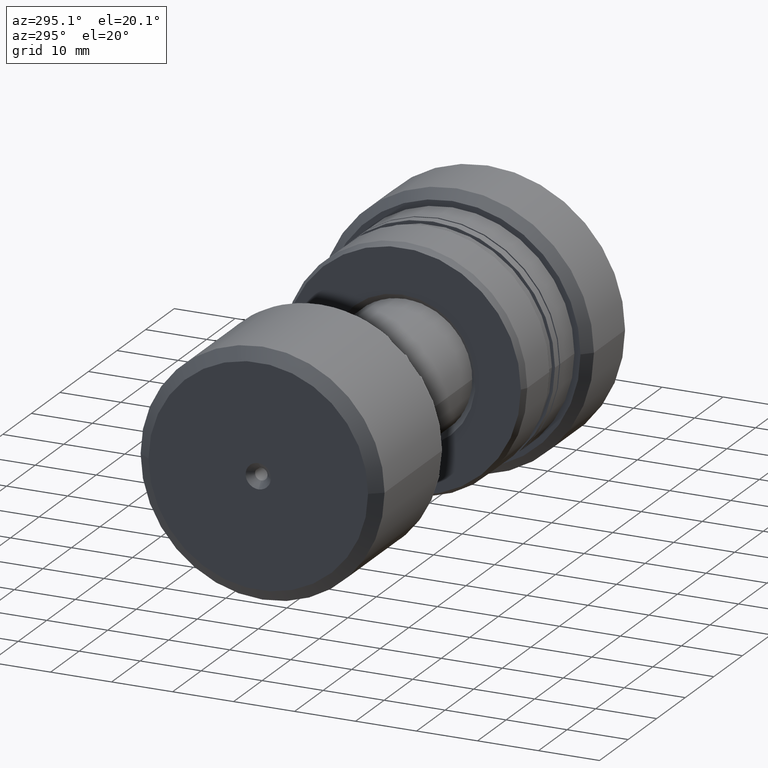
[diagram: clean part render]
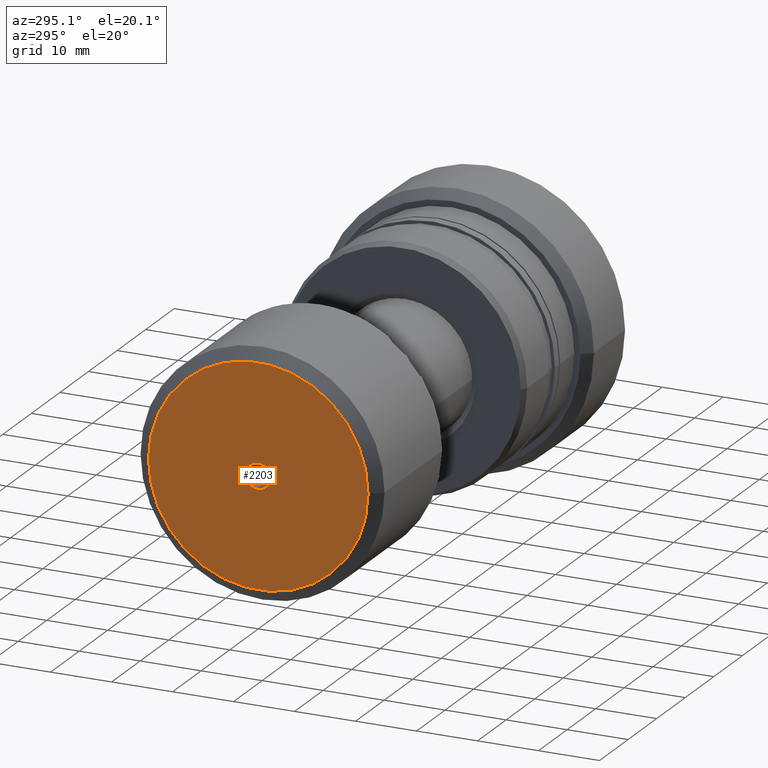
[diagram: same view with one face highlighted and labeled with its STEP entity id]
A machine part, auxiliary view. The second image highlights one B-rep face of the part: STEP entity #2203.
In plain terms, the highlighted planar face has unit normal (-1, -0, 0).
Its self-contained STEP definition (entity closure, byte-faithful):
#11 = EDGE_CURVE ( 'NONE', #1851, #1107, #2375, .T. ) ;
#24 = CIRCLE ( 'NONE', #801, 18.00000000000000355 ) ;
#45 = EDGE_LOOP ( 'NONE', ( #1334, #603 ) ) ;
#71 = EDGE_LOOP ( 'NONE', ( #2419, #1351 ) ) ;
#74 = CARTESIAN_POINT ( 'NONE',  ( 1.005923310246402065E-15, 0.000000000000000000, 0.000000000000000000 ) ) ;
#169 = CARTESIAN_POINT ( 'NONE',  ( 1.819329002520372041E-15, 18.00000000000000355, 0.000000000000000000 ) ) ;
#195 = AXIS2_PLACEMENT_3D ( 'NONE', #1829, #937, #2024 ) ;
#237 = DIRECTION ( 'NONE',  ( 1.069542322069065647E-17, -1.000000000000000000, 0.000000000000000000 ) ) ;
#406 = DIRECTION ( 'NONE',  ( 1.069542322069065647E-17, -1.000000000000000000, 0.000000000000000000 ) ) ;
#470 = DIRECTION ( 'NONE',  ( 1.000000000000000000, 1.069542322069065801E-17, 0.000000000000000000 ) ) ;
#585 = DIRECTION ( 'NONE',  ( -1.000000000000000000, -1.069542322069065801E-17, -0.000000000000000000 ) ) ;
#603 = ORIENTED_EDGE ( 'NONE', *, *, #667, .T. ) ;
#665 = DIRECTION ( 'NONE',  ( 1.069542322069068574E-17, -1.000000000000000000, 0.000000000000000000 ) ) ;
#667 = EDGE_CURVE ( 'NONE', #800, #1930, #24, .T. ) ;
#709 = FACE_BOUND ( 'NONE', #71, .T. ) ;
#800 = VERTEX_POINT ( 'NONE', #1901 ) ;
#801 = AXIS2_PLACEMENT_3D ( 'NONE', #1914, #1356, #237 ) ;
#828 = DIRECTION ( 'NONE',  ( 1.069542322069068574E-17, -1.000000000000000000, 0.000000000000000000 ) ) ;
#931 = CARTESIAN_POINT ( 'NONE',  ( 1.005923310246402065E-15, 2.541142108230750183E-16, -2.074999999999993516 ) ) ;
#937 = DIRECTION ( 'NONE',  ( -1.000000000000000000, -1.069542322069065801E-17, 0.000000000000000000 ) ) ;
#1107 = VERTEX_POINT ( 'NONE', #1772 ) ;
#1222 = AXIS2_PLACEMENT_3D ( 'NONE', #2240, #585, #406 ) ;
#1234 = DIRECTION ( 'NONE',  ( 1.000000000000000000, 1.069542322069065801E-17, 0.000000000000000000 ) ) ;
#1334 = ORIENTED_EDGE ( 'NONE', *, *, #2402, .T. ) ;
#1351 = ORIENTED_EDGE ( 'NONE', *, *, #11, .T. ) ;
#1356 = DIRECTION ( 'NONE',  ( -1.000000000000000000, -1.069542322069065801E-17, -0.000000000000000000 ) ) ;
#1577 = CIRCLE ( 'NONE', #1222, 18.00000000000000355 ) ;
#1772 = CARTESIAN_POINT ( 'NONE',  ( 1.005923310246402065E-15, 0.000000000000000000, 2.074999999999993516 ) ) ;
#1829 = CARTESIAN_POINT ( 'NONE',  ( 1.005923310246402065E-15, 1.075877553064338154E-32, 0.000000000000000000 ) ) ;
#1835 = AXIS2_PLACEMENT_3D ( 'NONE', #1932, #1234, #665 ) ;
#1851 = VERTEX_POINT ( 'NONE', #931 ) ;
#1901 = CARTESIAN_POINT ( 'NONE',  ( 2.204364238465235822E-15, -18.00000000000000355, 2.326828918379971365E-15 ) ) ;
#1914 = CARTESIAN_POINT ( 'NONE',  ( 2.011846620492804129E-15, 2.151755106128676308E-32, 0.000000000000000000 ) ) ;
#1930 = VERTEX_POINT ( 'NONE', #169 ) ;
#1932 = CARTESIAN_POINT ( 'NONE',  ( 1.005923310246402065E-15, 0.000000000000000000, 0.000000000000000000 ) ) ;
#2021 = AXIS2_PLACEMENT_3D ( 'NONE', #74, #470, #828 ) ;
#2024 = DIRECTION ( 'NONE',  ( 1.069542322069065801E-17, -1.000000000000000000, 0.000000000000000000 ) ) ;
#2119 = EDGE_CURVE ( 'NONE', #1107, #1851, #2223, .T. ) ;
#2203 = ADVANCED_FACE ( 'NONE', ( #709, #2215 ), #2411, .T. ) ;
#2215 = FACE_OUTER_BOUND ( 'NONE', #45, .T. ) ;
#2223 = CIRCLE ( 'NONE', #1835, 2.074999999999993516 ) ;
#2240 = CARTESIAN_POINT ( 'NONE',  ( 2.011846620492804129E-15, 2.151755106128676308E-32, 0.000000000000000000 ) ) ;
#2375 = CIRCLE ( 'NONE', #2021, 2.074999999999993516 ) ;
#2402 = EDGE_CURVE ( 'NONE', #1930, #800, #1577, .T. ) ;
#2411 = PLANE ( 'NONE',  #195 ) ;
#2419 = ORIENTED_EDGE ( 'NONE', *, *, #2119, .T. ) ;